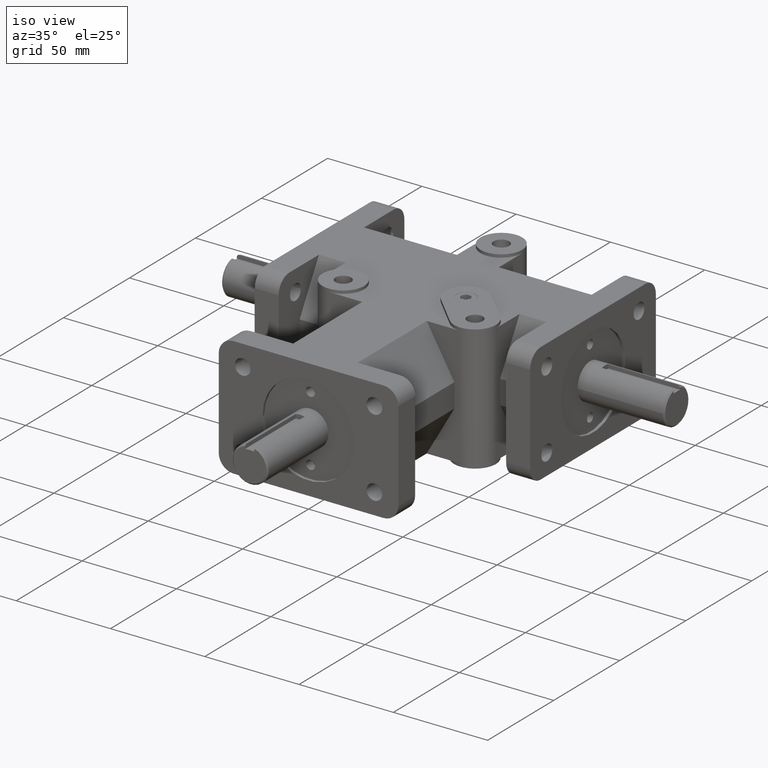
[diagram: clean part render]
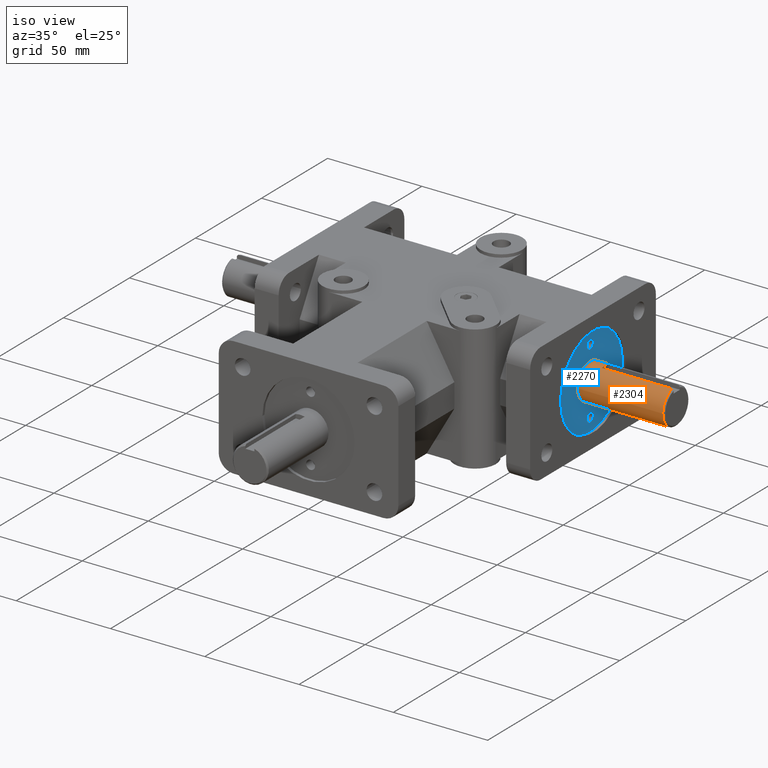
[diagram: same view with the hole feature highlighted: cylindrical wall and planar end face, labeled with their STEP entity ids]
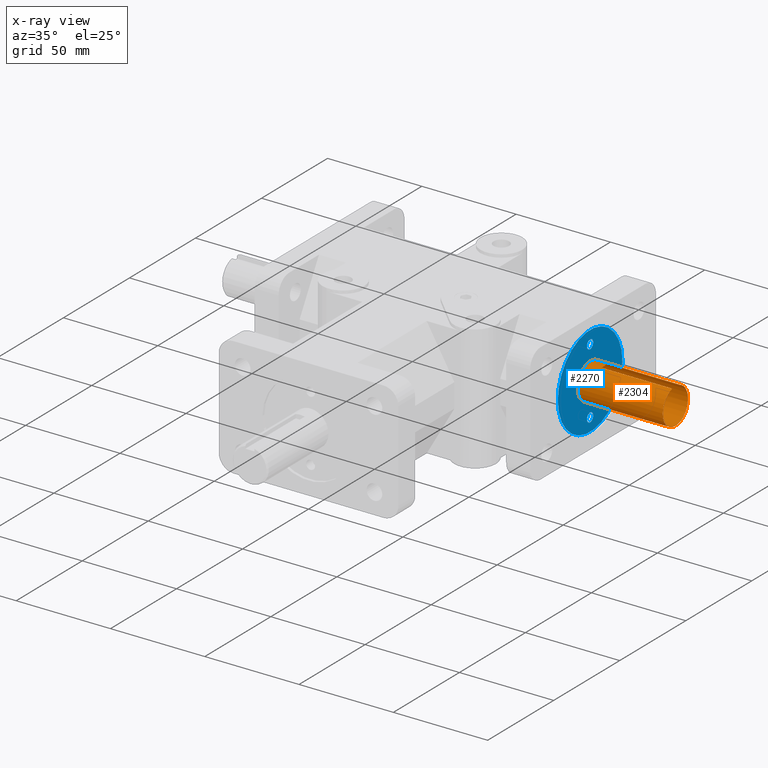
[diagram: x-ray of the same camera — body ghosted, the hole faces saturated]
A machine part, iso view. The highlighted faces form one hole feature of diameter 19.05 mm: the cylindrical wall (entity #2304, orange) and its adjacent planar end face (entity #2270, blue) — they share a circular edge in the B-rep.
The next image is the same camera in x-ray (body ghosted, the hole faces saturated) — the bore reads through the body.
Wall:
#130=LINE('',#3694,#352);
#131=LINE('',#3697,#353);
#132=LINE('',#3698,#354);
#352=VECTOR('',#2954,1.);
#353=VECTOR('',#2957,1.);
#354=VECTOR('',#2958,0.375);
#485=CYLINDRICAL_SURFACE('',#2511,0.375);
#592=FACE_OUTER_BOUND('',#742,.T.);
#742=EDGE_LOOP('',(#1750,#1751,#1752,#1753,#1754,#1755,#1756,#1757));
#866=CIRCLE('',#2421,0.375);
#920=CIRCLE('',#2508,0.375);
#921=CIRCLE('',#2509,0.375);
#923=CIRCLE('',#2512,0.375);
#972=VERTEX_POINT('',#3358);
#1101=VERTEX_POINT('',#3679);
#1102=VERTEX_POINT('',#3683);
#1103=VERTEX_POINT('',#3685);
#1105=VERTEX_POINT('',#3693);
#1106=VERTEX_POINT('',#3695);
#1193=EDGE_CURVE('',#972,#972,#866,.T.);
#1353=EDGE_CURVE('',#1101,#1102,#920,.T.);
#1354=EDGE_CURVE('',#1102,#1103,#921,.T.);
#1357=EDGE_CURVE('',#1101,#1105,#130,.T.);
#1358=EDGE_CURVE('',#1105,#1106,#923,.T.);
#1359=EDGE_CURVE('',#1106,#1103,#131,.T.);
#1360=EDGE_CURVE('',#1102,#972,#132,.T.);
#1750=ORIENTED_EDGE('',*,*,#1353,.F.);
#1751=ORIENTED_EDGE('',*,*,#1357,.T.);
#1752=ORIENTED_EDGE('',*,*,#1358,.T.);
#1753=ORIENTED_EDGE('',*,*,#1359,.T.);
#1754=ORIENTED_EDGE('',*,*,#1354,.F.);
#1755=ORIENTED_EDGE('',*,*,#1360,.T.);
#1756=ORIENTED_EDGE('',*,*,#1193,.F.);
#1757=ORIENTED_EDGE('',*,*,#1360,.F.);
#2304=ADVANCED_FACE('',(#592),#485,.T.);
#2421=AXIS2_PLACEMENT_3D('',#3359,#2667,#2668);
#2508=AXIS2_PLACEMENT_3D('',#3684,#2946,#2947);
#2509=AXIS2_PLACEMENT_3D('',#3686,#2948,#2949);
#2511=AXIS2_PLACEMENT_3D('',#3692,#2952,#2953);
#2512=AXIS2_PLACEMENT_3D('',#3696,#2955,#2956);
#2667=DIRECTION('center_axis',(-1.,0.,0.));
#2668=DIRECTION('ref_axis',(0.,1.,0.));
#2946=DIRECTION('center_axis',(1.,-6.12303176911189E-17,0.));
#2947=DIRECTION('ref_axis',(6.12303176911189E-17,1.,0.));
#2948=DIRECTION('center_axis',(1.,-6.12303176911189E-17,0.));
#2949=DIRECTION('ref_axis',(6.12303176911189E-17,1.,0.));
#2952=DIRECTION('center_axis',(1.,-6.12303176911189E-17,0.));
#2953=DIRECTION('ref_axis',(6.12303176911189E-17,1.,0.));
#2954=DIRECTION('',(-1.,6.12303176911189E-17,0.));
#2955=DIRECTION('center_axis',(-1.,6.12303176911189E-17,0.));
#2956=DIRECTION('ref_axis',(6.12303176911189E-17,1.,0.));
#2957=DIRECTION('',(1.,-6.12303176911189E-17,0.));
#2958=DIRECTION('',(-1.,6.12303176911189E-17,0.));
#3358=CARTESIAN_POINT('',(2.815,4.,-4.59242549680257E-17));
#3359=CARTESIAN_POINT('Origin',(2.815,4.375,0.));
#3679=CARTESIAN_POINT('',(4.595,4.28125,0.363092188706945));
#3683=CARTESIAN_POINT('',(4.595,4.,-4.59242549680257E-17));
#3684=CARTESIAN_POINT('Origin',(4.595,4.375,0.));
#3685=CARTESIAN_POINT('',(4.595,4.46875,0.363092188706945));
#3686=CARTESIAN_POINT('Origin',(4.595,4.375,0.));
#3692=CARTESIAN_POINT('Origin',(2.875,4.375,0.));
#3693=CARTESIAN_POINT('',(3.125,4.28125,0.363092188706945));
#3694=CARTESIAN_POINT('',(2.875,4.28125,0.363092188706945));
#3695=CARTESIAN_POINT('',(3.125,4.46875,0.363092188706945));
#3696=CARTESIAN_POINT('Origin',(3.125,4.375,0.));
#3697=CARTESIAN_POINT('',(2.875,4.46875,0.363092188706945));
#3698=CARTESIAN_POINT('',(2.875,4.,-4.59242549680257E-17));
End face:
#516=FACE_BOUND('',#691,.T.);
#517=FACE_BOUND('',#692,.T.);
#518=FACE_BOUND('',#693,.T.);
#558=FACE_OUTER_BOUND('',#690,.T.);
#690=EDGE_LOOP('',(#1524));
#691=EDGE_LOOP('',(#1525));
#692=EDGE_LOOP('',(#1526));
#693=EDGE_LOOP('',(#1527));
#863=CIRCLE('',#2418,0.963);
#864=CIRCLE('',#2419,0.09375);
#865=CIRCLE('',#2420,0.09375);
#866=CIRCLE('',#2421,0.375);
#969=VERTEX_POINT('',#3352);
#970=VERTEX_POINT('',#3354);
#971=VERTEX_POINT('',#3356);
#972=VERTEX_POINT('',#3358);
#1190=EDGE_CURVE('',#969,#969,#863,.T.);
#1191=EDGE_CURVE('',#970,#970,#864,.T.);
#1192=EDGE_CURVE('',#971,#971,#865,.T.);
#1193=EDGE_CURVE('',#972,#972,#866,.T.);
#1524=ORIENTED_EDGE('',*,*,#1190,.T.);
#1525=ORIENTED_EDGE('',*,*,#1191,.T.);
#1526=ORIENTED_EDGE('',*,*,#1192,.T.);
#1527=ORIENTED_EDGE('',*,*,#1193,.T.);
#2189=PLANE('',#2417);
#2270=ADVANCED_FACE('',(#558,#516,#517,#518),#2189,.T.);
#2417=AXIS2_PLACEMENT_3D('',#3351,#2659,#2660);
#2418=AXIS2_PLACEMENT_3D('',#3353,#2661,#2662);
#2419=AXIS2_PLACEMENT_3D('',#3355,#2663,#2664);
#2420=AXIS2_PLACEMENT_3D('',#3357,#2665,#2666);
#2421=AXIS2_PLACEMENT_3D('',#3359,#2667,#2668);
#2659=DIRECTION('center_axis',(1.,0.,0.));
#2660=DIRECTION('ref_axis',(0.,-1.,0.));
#2661=DIRECTION('center_axis',(1.,0.,0.));
#2662=DIRECTION('ref_axis',(0.,1.,0.));
#2663=DIRECTION('center_axis',(-1.,0.,0.));
#2664=DIRECTION('ref_axis',(0.,1.,0.));
#2665=DIRECTION('center_axis',(-1.,0.,0.));
#2666=DIRECTION('ref_axis',(0.,1.,0.));
#2667=DIRECTION('center_axis',(-1.,0.,0.));
#2668=DIRECTION('ref_axis',(0.,1.,0.));
#3351=CARTESIAN_POINT('Origin',(2.815,4.44318181818182,-1.66991775521233E-17));
#3352=CARTESIAN_POINT('',(2.815,3.412,1.1793348675789E-16));
#3353=CARTESIAN_POINT('Origin',(2.815,4.375,0.));
#3354=CARTESIAN_POINT('',(2.815,4.28125,-0.69));
#3355=CARTESIAN_POINT('Origin',(2.815,4.375,-0.69));
#3356=CARTESIAN_POINT('',(2.815,4.28125,0.69));
#3357=CARTESIAN_POINT('Origin',(2.815,4.375,0.69));
#3358=CARTESIAN_POINT('',(2.815,4.,-4.59242549680257E-17));
#3359=CARTESIAN_POINT('Origin',(2.815,4.375,0.));